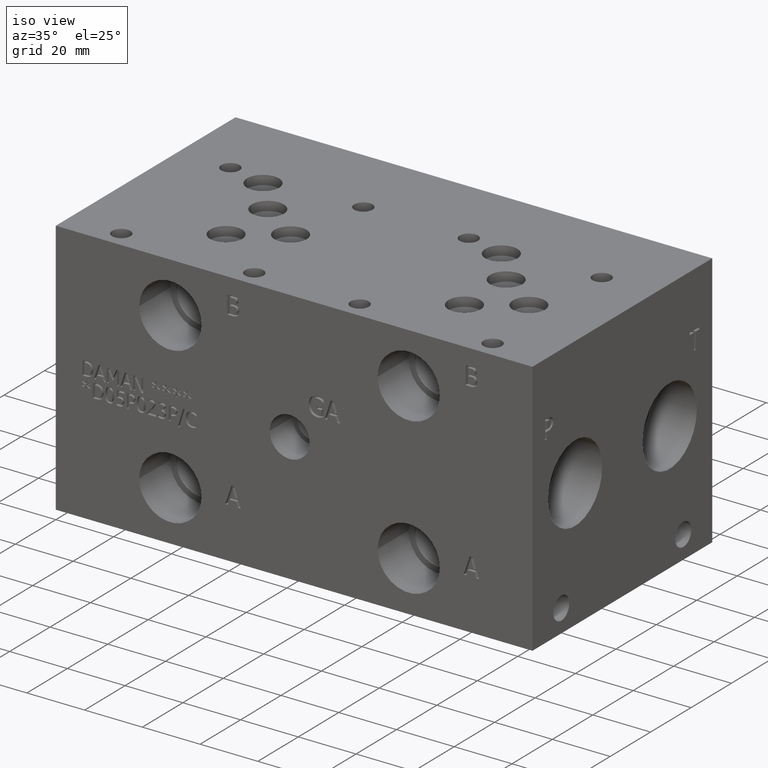
[diagram: clean part render]
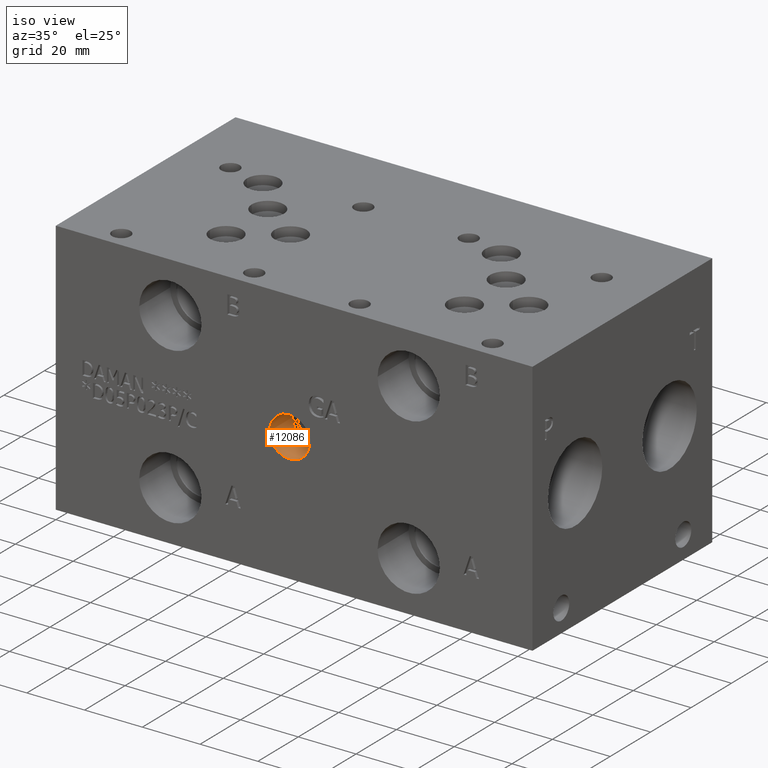
[diagram: same view with one face highlighted and labeled with its STEP entity id]
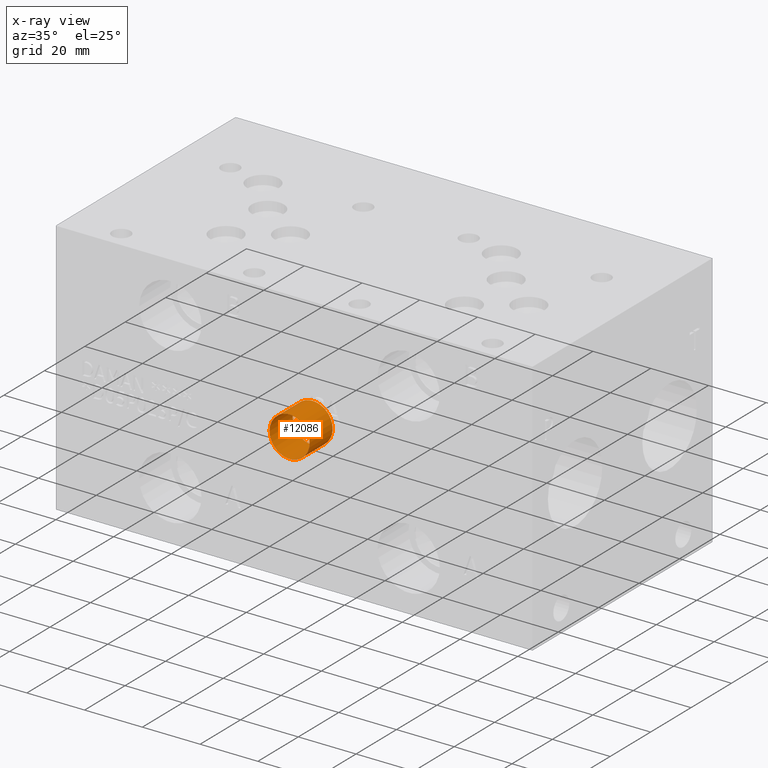
[diagram: x-ray of the same camera — body ghosted, the highlighted face saturated]
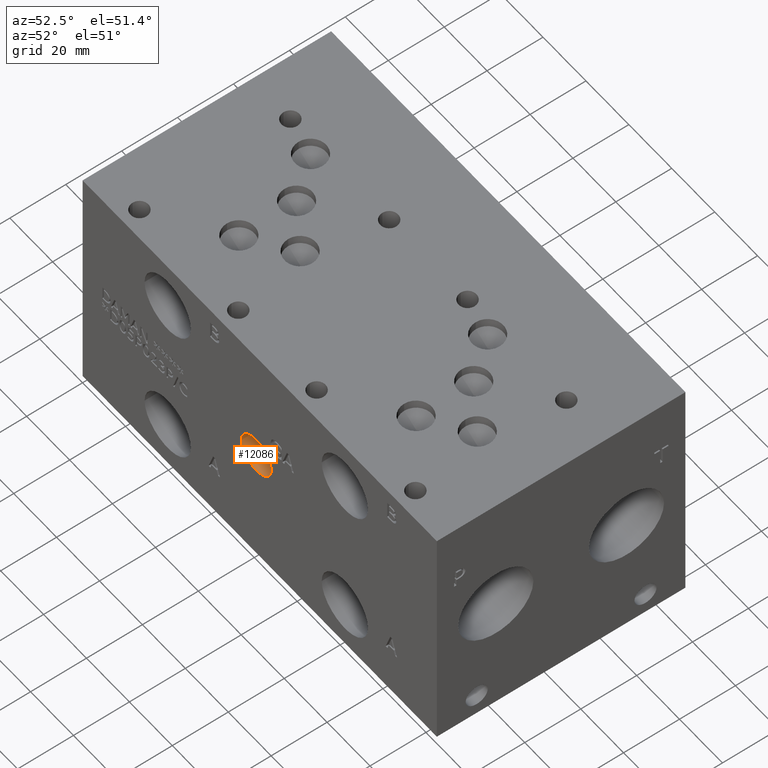
[diagram: same view with one face highlighted and labeled with its STEP entity id]
A machine part, iso view. The second image highlights one B-rep face of the part: STEP entity #12086.
The next image is the same camera in x-ray: the body ghosted, the highlighted face saturated — about 0% of this face is hidden behind the body in this view.
A second angle (auxiliary view) of the same face is appended — the face is thin or edge-on in the first view.
In plain terms, the highlighted cylindrical surface (bore or boss wall) has radius 6.9342 mm, axis along (0, -1, 0).
Its self-contained STEP definition (entity closure, byte-faithful):
#54=CYLINDRICAL_SURFACE('',#12607,6.9342);
#112=CIRCLE('',#12293,6.9342);
#113=CIRCLE('',#12294,6.9342);
#158=CIRCLE('',#12604,6.9342);
#159=CIRCLE('',#12605,6.9342);
#1447=FACE_OUTER_BOUND('',#2133,.T.);
#2133=EDGE_LOOP('',(#10201,#10202,#10203,#10204,#10205,#10206));
#3321=LINE('',#20499,#4448);
#4448=VECTOR('',#14716,6.9342);
#5028=VERTEX_POINT('',#18084);
#5029=VERTEX_POINT('',#18085);
#5506=VERTEX_POINT('',#20492);
#5507=VERTEX_POINT('',#20493);
#6361=EDGE_CURVE('',#5028,#5029,#112,.T.);
#6362=EDGE_CURVE('',#5029,#5028,#113,.T.);
#7132=EDGE_CURVE('',#5506,#5507,#158,.T.);
#7133=EDGE_CURVE('',#5507,#5506,#159,.T.);
#7135=EDGE_CURVE('',#5029,#5507,#3321,.T.);
#10201=ORIENTED_EDGE('',*,*,#6361,.F.);
#10202=ORIENTED_EDGE('',*,*,#6362,.F.);
#10203=ORIENTED_EDGE('',*,*,#7135,.T.);
#10204=ORIENTED_EDGE('',*,*,#7132,.F.);
#10205=ORIENTED_EDGE('',*,*,#7133,.F.);
#10206=ORIENTED_EDGE('',*,*,#7135,.F.);
#12086=ADVANCED_FACE('',(#1447),#54,.F.);
#12293=AXIS2_PLACEMENT_3D('',#18086,#13483,#13484);
#12294=AXIS2_PLACEMENT_3D('',#18087,#13485,#13486);
#12604=AXIS2_PLACEMENT_3D('',#20494,#14708,#14709);
#12605=AXIS2_PLACEMENT_3D('',#20495,#14710,#14711);
#12607=AXIS2_PLACEMENT_3D('',#20498,#14714,#14715);
#13483=DIRECTION('center_axis',(0.,1.,0.));
#13484=DIRECTION('ref_axis',(1.,0.,0.));
#13485=DIRECTION('center_axis',(0.,1.,0.));
#13486=DIRECTION('ref_axis',(1.,0.,0.));
#14708=DIRECTION('center_axis',(0.,-1.,0.));
#14709=DIRECTION('ref_axis',(1.,0.,0.));
#14710=DIRECTION('center_axis',(0.,-1.,0.));
#14711=DIRECTION('ref_axis',(1.,0.,0.));
#14714=DIRECTION('center_axis',(0.,-1.,0.));
#14715=DIRECTION('ref_axis',(1.,0.,0.));
#14716=DIRECTION('',(0.,1.,0.));
#18084=CARTESIAN_POINT('',(87.9094,0.,44.45));
#18085=CARTESIAN_POINT('',(74.041,0.,44.45));
#18086=CARTESIAN_POINT('Origin',(80.9752,0.,44.45));
#18087=CARTESIAN_POINT('Origin',(80.9752,0.,44.45));
#20492=CARTESIAN_POINT('',(87.9094,11.4046,44.45));
#20493=CARTESIAN_POINT('',(74.041,11.4046,44.45));
#20494=CARTESIAN_POINT('Origin',(80.9752,11.4046,44.45));
#20495=CARTESIAN_POINT('Origin',(80.9752,11.4046,44.45));
#20498=CARTESIAN_POINT('Origin',(80.9752,5.7023,44.45));
#20499=CARTESIAN_POINT('',(74.041,5.7023,44.45));